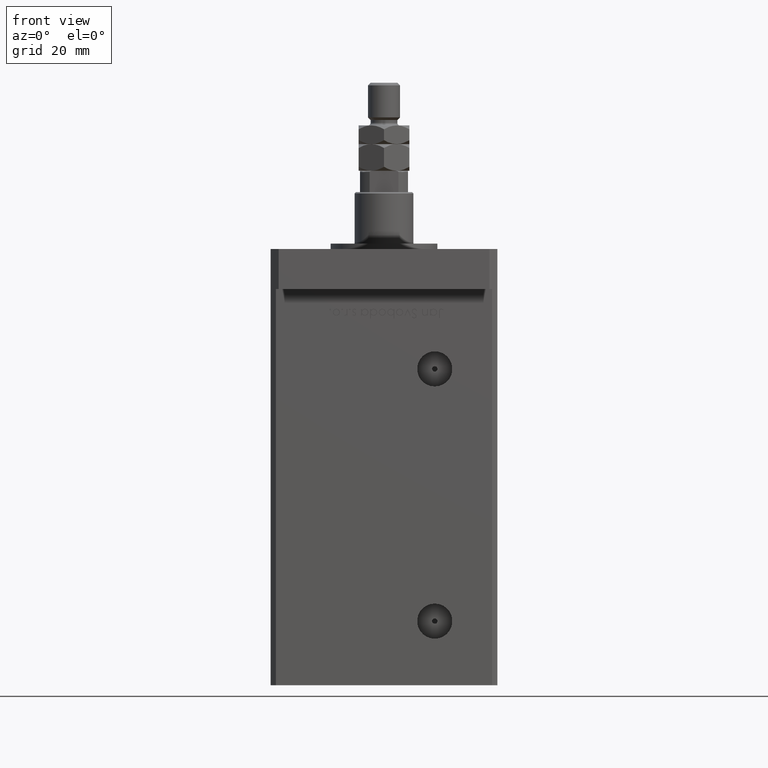
[diagram: clean part render]
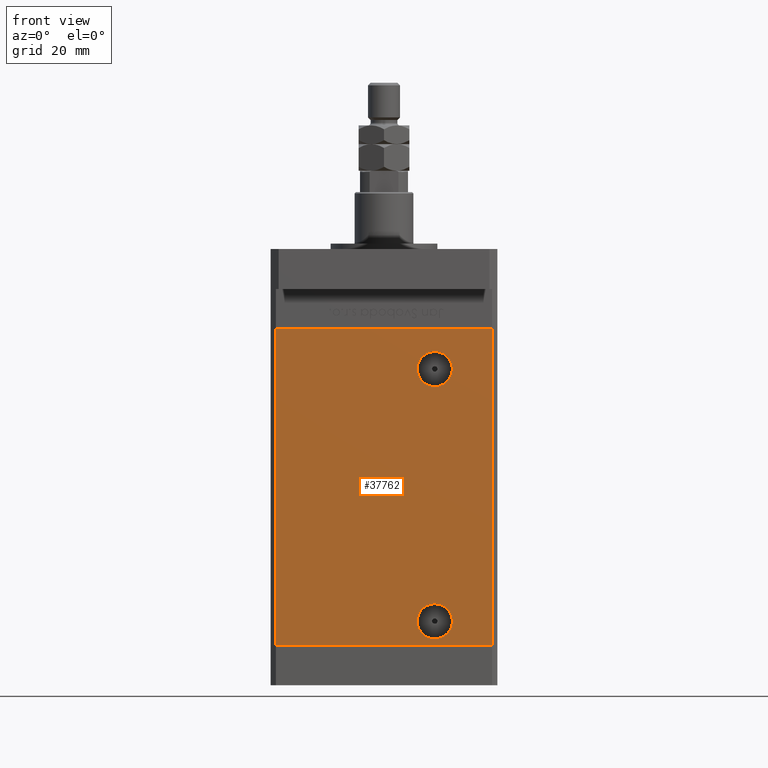
[diagram: same view with one face highlighted and labeled with its STEP entity id]
A machine part, front view. The second image highlights one B-rep face of the part: STEP entity #37762.
In plain terms, the highlighted planar face has unit normal (0, 1, 0).
Its self-contained STEP definition (entity closure, byte-faithful):
#332 = DIRECTION ( 'NONE',  ( 0.000000000000000000, 0.000000000000000000, -1.000000000000000000 ) ) ;
#501 = CARTESIAN_POINT ( 'NONE',  ( -40.49999999999998579, -37.50000000000000711, 118.5000000000000000 ) ) ;
#1212 = CARTESIAN_POINT ( 'NONE',  ( 40.49999999999998579, -37.50000000000000711, 0.000000000000000000 ) ) ;
#2921 = CIRCLE ( 'NONE', #21647, 6.580000000000002736 ) ;
#5026 = DIRECTION ( 'NONE',  ( 0.000000000000000000, 0.000000000000000000, -1.000000000000000000 ) ) ;
#5739 = EDGE_CURVE ( 'NONE', #37236, #23089, #50374, .T. ) ;
#7143 = ORIENTED_EDGE ( 'NONE', *, *, #50969, .F. ) ;
#7196 = CARTESIAN_POINT ( 'NONE',  ( 18.99999999999998934, -37.50000000000000711, 8.999999999999994671 ) ) ;
#7856 = ORIENTED_EDGE ( 'NONE', *, *, #27548, .F. ) ;
#8780 = ORIENTED_EDGE ( 'NONE', *, *, #8939, .T. ) ;
#8801 = FACE_BOUND ( 'NONE', #54818, .T. ) ;
#8939 = EDGE_CURVE ( 'NONE', #51396, #21349, #38753, .T. ) ;
#9213 = CARTESIAN_POINT ( 'NONE',  ( 18.99999999999997868, -37.50000000000000711, 103.5000000000000000 ) ) ;
#9583 = EDGE_CURVE ( 'NONE', #21349, #31256, #42246, .T. ) ;
#11125 = DIRECTION ( 'NONE',  ( 0.000000000000000000, 0.000000000000000000, -1.000000000000000000 ) ) ;
#11168 = CARTESIAN_POINT ( 'NONE',  ( 18.99999999999998934, -37.50000000000000711, 8.999999999999994671 ) ) ;
#12993 = DIRECTION ( 'NONE',  ( 0.000000000000000000, 1.000000000000000000, 0.000000000000000000 ) ) ;
#13272 = PLANE ( 'NONE',  #37659 ) ;
#13512 = LINE ( 'NONE', #48116, #27673 ) ;
#16513 = LINE ( 'NONE', #24639, #52651 ) ;
#16829 = ORIENTED_EDGE ( 'NONE', *, *, #50440, .T. ) ;
#17527 = DIRECTION ( 'NONE',  ( -0.000000000000000000, -0.000000000000000000, -1.000000000000000000 ) ) ;
#18357 = CARTESIAN_POINT ( 'NONE',  ( 18.99999999999997868, -37.50000000000000711, 110.0799999999999983 ) ) ;
#20919 = CARTESIAN_POINT ( 'NONE',  ( 40.49999999999998579, -37.50000000000000711, 118.5000000000000000 ) ) ;
#21349 = VERTEX_POINT ( 'NONE', #36573 ) ;
#21647 = AXIS2_PLACEMENT_3D ( 'NONE', #25749, #51702, #332 ) ;
#21845 = AXIS2_PLACEMENT_3D ( 'NONE', #9213, #43276, #5026 ) ;
#22720 = DIRECTION ( 'NONE',  ( 1.000000000000000000, 0.000000000000000000, 0.000000000000000000 ) ) ;
#23089 = VERTEX_POINT ( 'NONE', #18357 ) ;
#23189 = DIRECTION ( 'NONE',  ( 0.000000000000000000, 0.000000000000000000, -1.000000000000000000 ) ) ;
#24639 = CARTESIAN_POINT ( 'NONE',  ( 40.49999999999998579, -37.50000000000000711, 118.5000000000000000 ) ) ;
#25749 = CARTESIAN_POINT ( 'NONE',  ( 18.99999999999997868, -37.50000000000000711, 103.5000000000000000 ) ) ;
#26852 = CARTESIAN_POINT ( 'NONE',  ( 18.99999999999998934, -37.50000000000000711, 2.419999999999995932 ) ) ;
#27385 = DIRECTION ( 'NONE',  ( 0.000000000000000000, -1.000000000000000000, 0.000000000000000000 ) ) ;
#27548 = EDGE_CURVE ( 'NONE', #28764, #31256, #16513, .T. ) ;
#27673 = VECTOR ( 'NONE', #22720, 1000.000000000000000 ) ;
#28131 = VECTOR ( 'NONE', #17527, 1000.000000000000000 ) ;
#28194 = EDGE_CURVE ( 'NONE', #51396, #28764, #13512, .T. ) ;
#28431 = DIRECTION ( 'NONE',  ( 0.000000000000000000, -1.000000000000000000, 0.000000000000000000 ) ) ;
#28764 = VERTEX_POINT ( 'NONE', #20919 ) ;
#29704 = AXIS2_PLACEMENT_3D ( 'NONE', #7196, #28431, #11125 ) ;
#30801 = VECTOR ( 'NONE', #50348, 1000.000000000000000 ) ;
#30905 = CARTESIAN_POINT ( 'NONE',  ( 18.99999999999998934, -37.50000000000000711, 15.57999999999999297 ) ) ;
#31133 = FACE_OUTER_BOUND ( 'NONE', #31865, .T. ) ;
#31256 = VERTEX_POINT ( 'NONE', #1212 ) ;
#31760 = VERTEX_POINT ( 'NONE', #30905 ) ;
#31865 = EDGE_LOOP ( 'NONE', ( #52342, #7856, #44474, #8780 ) ) ;
#33761 = EDGE_CURVE ( 'NONE', #31760, #52248, #40219, .T. ) ;
#36338 = CARTESIAN_POINT ( 'NONE',  ( -40.49999999999998579, -37.50000000000000711, 118.5000000000000000 ) ) ;
#36573 = CARTESIAN_POINT ( 'NONE',  ( -40.49999999999998579, -37.50000000000000711, 0.000000000000000000 ) ) ;
#37236 = VERTEX_POINT ( 'NONE', #43065 ) ;
#37459 = DIRECTION ( 'NONE',  ( -0.000000000000000000, -0.000000000000000000, -1.000000000000000000 ) ) ;
#37659 = AXIS2_PLACEMENT_3D ( 'NONE', #43702, #12993, #43143 ) ;
#37762 = ADVANCED_FACE ( 'NONE', ( #8801, #31133, #47321 ), #13272, .F. ) ;
#38753 = LINE ( 'NONE', #501, #28131 ) ;
#39334 = ORIENTED_EDGE ( 'NONE', *, *, #33761, .F. ) ;
#40219 = CIRCLE ( 'NONE', #53600, 6.579999999999998295 ) ;
#40431 = CIRCLE ( 'NONE', #29704, 6.579999999999998295 ) ;
#42246 = LINE ( 'NONE', #50076, #30801 ) ;
#43065 = CARTESIAN_POINT ( 'NONE',  ( 18.99999999999997868, -37.50000000000000711, 96.91999999999998749 ) ) ;
#43070 = ORIENTED_EDGE ( 'NONE', *, *, #5739, .T. ) ;
#43143 = DIRECTION ( 'NONE',  ( 0.000000000000000000, -0.000000000000000000, 1.000000000000000000 ) ) ;
#43276 = DIRECTION ( 'NONE',  ( -0.000000000000000000, 1.000000000000000000, -0.000000000000000000 ) ) ;
#43702 = CARTESIAN_POINT ( 'NONE',  ( -40.49999999999998579, -37.50000000000000711, 118.5000000000000000 ) ) ;
#44474 = ORIENTED_EDGE ( 'NONE', *, *, #28194, .F. ) ;
#47321 = FACE_BOUND ( 'NONE', #48608, .T. ) ;
#48116 = CARTESIAN_POINT ( 'NONE',  ( -40.49999999999998579, -37.50000000000000711, 118.5000000000000000 ) ) ;
#48608 = EDGE_LOOP ( 'NONE', ( #43070, #16829 ) ) ;
#50076 = CARTESIAN_POINT ( 'NONE',  ( -40.49999999999998579, -37.50000000000000711, 0.000000000000000000 ) ) ;
#50348 = DIRECTION ( 'NONE',  ( 1.000000000000000000, 0.000000000000000000, 0.000000000000000000 ) ) ;
#50374 = CIRCLE ( 'NONE', #21845, 6.580000000000002736 ) ;
#50440 = EDGE_CURVE ( 'NONE', #23089, #37236, #2921, .T. ) ;
#50969 = EDGE_CURVE ( 'NONE', #52248, #31760, #40431, .T. ) ;
#51396 = VERTEX_POINT ( 'NONE', #36338 ) ;
#51702 = DIRECTION ( 'NONE',  ( -0.000000000000000000, 1.000000000000000000, -0.000000000000000000 ) ) ;
#52248 = VERTEX_POINT ( 'NONE', #26852 ) ;
#52342 = ORIENTED_EDGE ( 'NONE', *, *, #9583, .T. ) ;
#52651 = VECTOR ( 'NONE', #37459, 1000.000000000000000 ) ;
#53600 = AXIS2_PLACEMENT_3D ( 'NONE', #11168, #27385, #23189 ) ;
#54818 = EDGE_LOOP ( 'NONE', ( #7143, #39334 ) ) ;